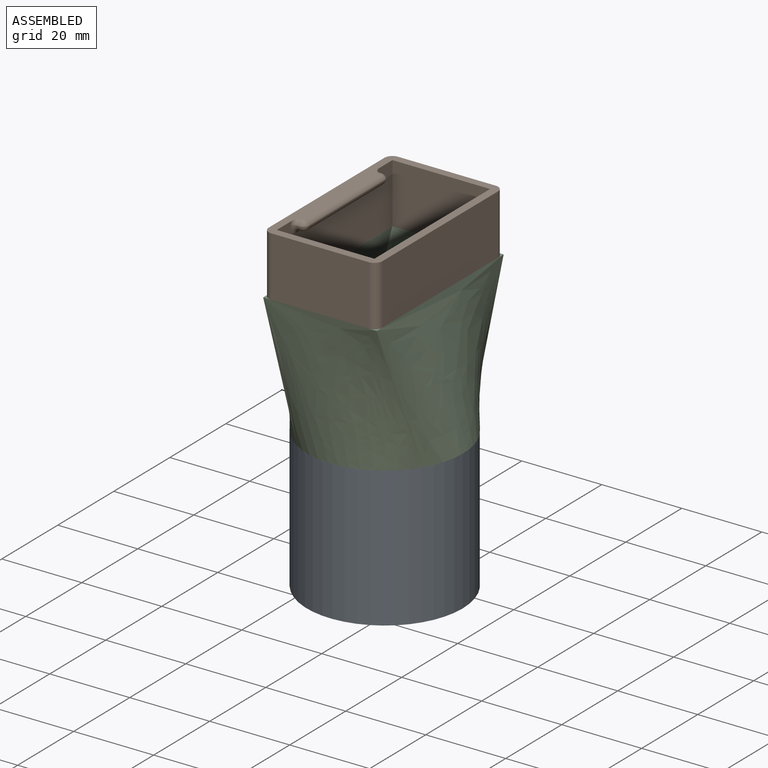
[diagram: assembled view]
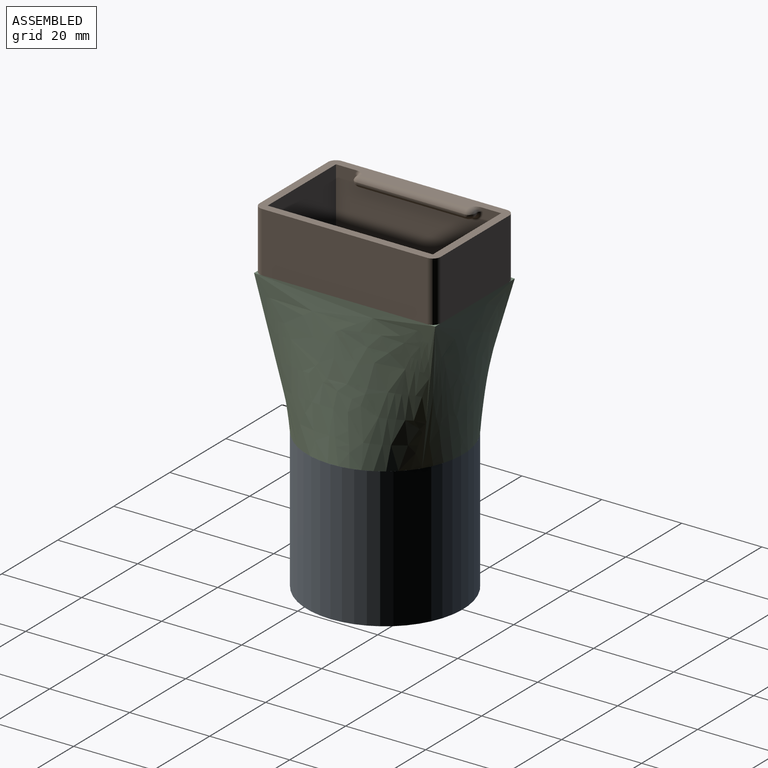
[diagram: assembled view, second angle]
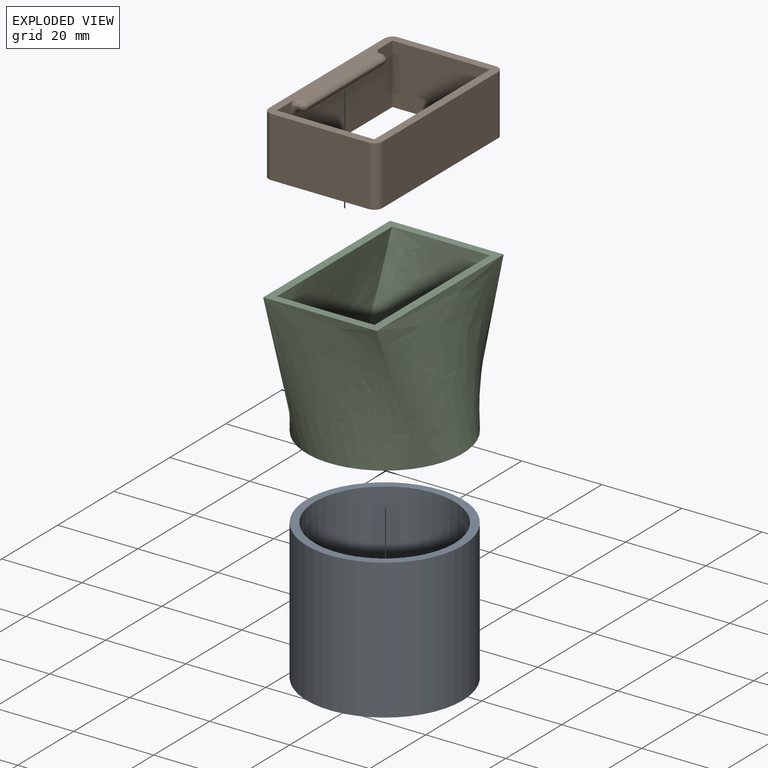
[diagram: exploded view]
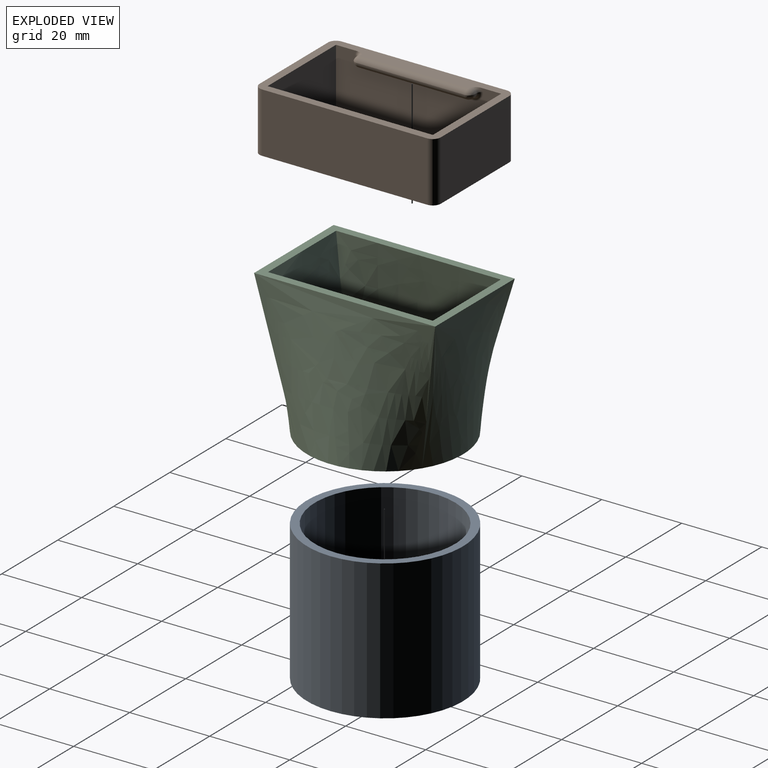
[diagram: exploded view, second angle]
ASSEMBLY  parts=3 mates=2
PART A: 4 faces, bbox 39x39x35 mm
  f0: cylinder r=17.5mm len=35mm, axis (0,0,-1), area 3848.5mm2, adj f2,f3
  f1: cylinder r=19.5mm len=39mm, axis (0,0,-1), area 4288.3mm2, adj f2,f3
  f2: plane 39x39mm, normal (0,0,1), area 232.5mm2, adj f0,f1
  f3: plane 39x39mm, normal (0,0,-1), area 232.5mm2, adj f0,f1
PART B: 29 faces, bbox 28.4x45.3x17 mm
  f0: plane 41.3x15mm, normal (1,0,0), area 534.7mm2, adj f9,f10,f12,f13,f15,f25,f26,f27
  f1: plane 41.3x15mm, normal (1,0,0), area 619.5mm2, adj f2,f8,f9,f10
  f2: cylinder r=2mm len=15mm, axis (0,0,-1), area 47.1mm2, adj f1,f3,f9,f10
  f3: plane 24.4x15mm, normal (0,1,0), area 366mm2, adj f2,f4,f9,f10
  f4: cylinder r=2mm len=15mm, axis (0,0,-1), area 47.1mm2, adj f3,f5,f9,f10
  f5: plane 41.3x15mm, normal (-1,0,0), area 619.5mm2, adj f4,f6,f9,f10
  f6: cylinder r=2mm len=15mm, axis (0,0,-1), area 47.1mm2, adj f5,f7,f9,f10
  f7: plane 24.4x15mm, normal (0,-1,0), area 366mm2, adj f6,f8,f9,f10
  f8: cylinder r=2mm len=15mm, axis (0,0,-1), area 47.1mm2, adj f1,f7,f9,f10
  f9: plane 45.3x28.4mm, normal (0,0,1), area 319.9mm2, adj f0,f1,f2,f3,f4,f5,f6,f7
  f10: plane 45.3x28.4mm, normal (0,0,-1), area 275.4mm2, adj f0,f1,f2,f3,f4,f5,f6,f7
  f11: plane 41.3x15mm, normal (-1,0,0), area 619.5mm2, adj f9,f10,f12,f13
  f12: plane 24.4x15mm, normal (0,-1,0), area 366mm2, adj f0,f9,f10,f11
  f13: plane 24.4x15mm, normal (0,1,0), area 366mm2, adj f0,f9,f10,f11
  f14: cylinder r=1.5mm len=1.5mm, axis (-1,0,0), area 1.2mm2, adj f15,f17,f24,f25
  f15: plane 27x1.5mm, normal (0,0,-1), area 39.1mm2, adj f0,f14,f16,f18,f25,f27
  f16: cylinder r=1.5mm len=1.5mm, axis (-1,0,0), area 1.2mm2, adj f15,f19,f20,f27
  f17: sphere r=1.5mm, area 3.5mm2, adj f14,f18,f23
  f18: cylinder r=1.5mm len=27mm, axis (0,-1,0), area 63.6mm2, adj f15,f17,f19,f22
  f19: sphere r=1.5mm, area 3.5mm2, adj f16,f18,f21
  f20: cylinder r=1.5mm len=1.41mm, axis (-1,0,0), area 0.9mm2, adj f9,f16,f21,f28
  f21: torus R=0.09mm, axis (0,0,-1), area 2.6mm2, adj f9,f19,f20,f22
  f22: cylinder r=1.5mm len=27mm, axis (0,-1,0), area 49.9mm2, adj f9,f18,f21,f23
  f23: torus R=0.09mm, axis (0,0,-1), area 2.6mm2, adj f9,f17,f22,f24
  f24: cylinder r=1.5mm len=1.41mm, axis (-1,0,0), area 0.9mm2, adj f9,f14,f23,f26
  f25: torus R=2.5mm, axis (-1,0,0), area 6.4mm2, adj f0,f14,f15,f26
  f26: torus R=2.5mm, axis (-1,0,0), area 2mm2, adj f0,f9,f24,f25
  f27: torus R=2.5mm, axis (-1,0,0), area 6.4mm2, adj f0,f15,f16,f28
  f28: torus R=2.5mm, axis (-1,0,0), area 2mm2, adj f0,f9,f20,f27
PART C: 10 faces, bbox 43.2x50.7x40.4 mm
  f0: plane 40.35x40.35mm, normal (0,0,1), area 233.9mm2, adj f2,f3,f4,f5,f6,f7,f8,f9
  f1: plane 45.84x28.94mm, normal (0,0,-1), area 281mm2, adj f2,f3,f4,f5,f6,f7,f8,f9
  f2: bspline ~35.35x31.06mm, area 1021mm2, adj f0,f1,f3,f5
  f3: bspline ~45.75x35.64mm, area 1309.3mm2, adj f0,f1,f2,f4
  f4: bspline ~35.98x31.38mm, area 1022.9mm2, adj f0,f1,f3,f5
  f5: bspline ~45.75x35.6mm, area 1310mm2, adj f0,f1,f2,f4
  f6: offset ~39.95x35.09mm, area 898mm2, adj f0,f1,f7,f9
  f7: offset ~50.59x40.34mm, area 1203.6mm2, adj f0,f1,f6,f8
  f8: offset ~39.98x35.38mm, area 899.5mm2, adj f0,f1,f7,f9
  f9: offset ~50.61x40.35mm, area 1204.5mm2, adj f0,f1,f6,f8
PLACE A rot(axis=(1,0,0),180deg) t=(-40.9,-24.77,-45.57)mm
PLACE B t=(-26.84,-47.69,-10.57)mm
PLACE C rot(axis=(1,0,0),180deg) t=(-26.84,-2.39,-10.57)mm
MATE fastened C.f0 <-> A.f0  axis (0,0,-1) through (-40.9,-24.77,-45.57)mm
MATE fastened C.f1 <-> B.f10  axis (0,0,-1) through (-55.24,-25.04,-10.57)mm
